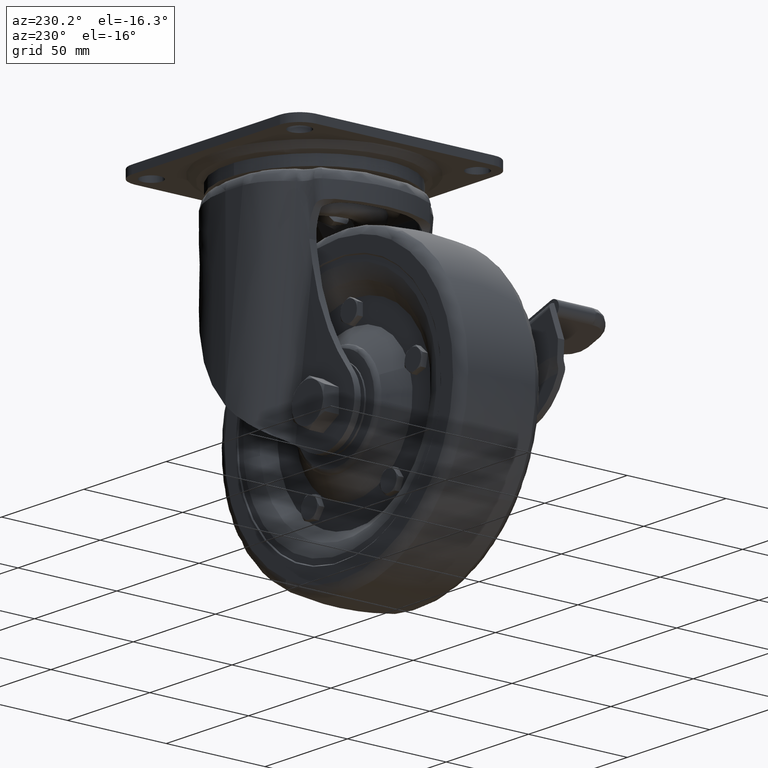
[diagram: clean part render]
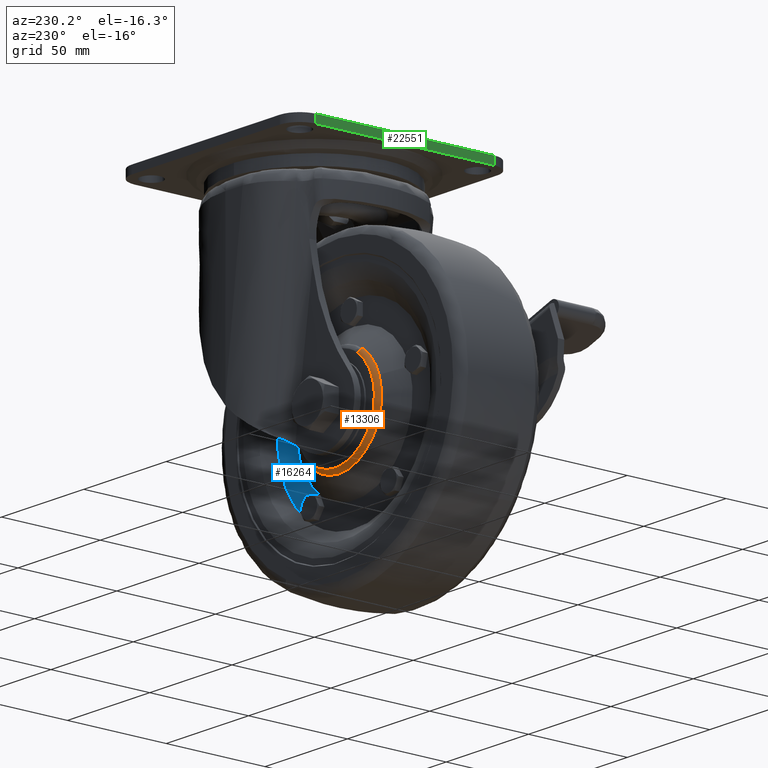
[diagram: same view with three faces highlighted in distinct colors, each labeled with its STEP entity id]
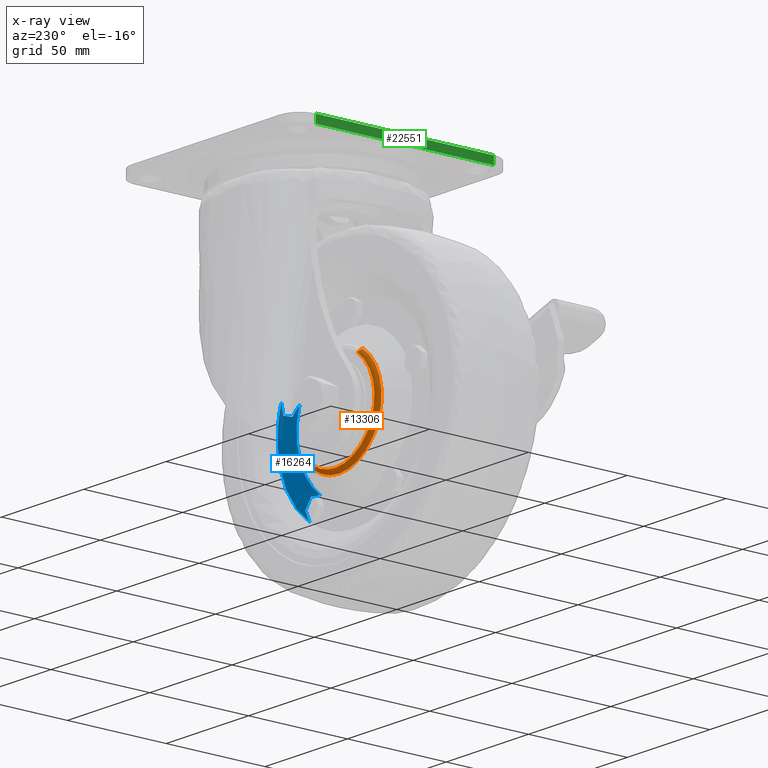
[diagram: x-ray of the same camera — body ghosted, the three highlighted faces saturated]
A machine part, auxiliary view with three faces highlighted in distinct colors.
The next image is the same camera in x-ray (body ghosted, the three faces saturated) — at least one of them is partly hidden behind the body in this view.
Their STEP definitions:

[orange] entity #13306 — the highlighted face is a freeform B-spline surface patch.
#12776=CARTESIAN_POINT('',(-53.861747544646320,23.0,-92.407857783142049));
#12777=VERTEX_POINT('',#12776);
#12778=CARTESIAN_POINT('',(-59.416410923004150,23.0,-126.106845855712900));
#12779=VERTEX_POINT('',#12778);
#12780=CARTESIAN_POINT('',(-53.861747544646320,22.999999999999993,-92.407857783142049));
#12781=CARTESIAN_POINT('',(-53.984850224825095,22.999999999999996,-92.494954839914882));
#12782=CARTESIAN_POINT('',(-54.106848720243448,22.999999999999989,-92.583591933061172));
#12783=CARTESIAN_POINT('',(-73.523256780459846,22.999999999999993,-106.690437791268470));
#12784=CARTESIAN_POINT('',(-59.416410923004150,23.0,-126.106845855712900));
#12792=(BOUNDED_CURVE()B_SPLINE_CURVE(2,(#12780,#12781,#12782,#12783,#12784),.UNSPECIFIED.,.F.,.U.)B_SPLINE_CURVE_WITH_KNOTS((3,2,3),(0.747784295919263,0.750000000000000,1.0),.UNSPECIFIED.)CURVE()GEOMETRIC_REPRESENTATION_ITEM()RATIONAL_B_SPLINE_CURVE((0.994854295638337,0.997404141199419,1.0,0.707106781186548,1.0))REPRESENTATION_ITEM(''));
#12793=EDGE_CURVE('',#12777,#12779,#12792,.T.);
#12810=CARTESIAN_POINT('',(-26.138258177399560,23.0,-131.592142216858010));
#12811=VERTEX_POINT('',#12810);
#12827=CARTESIAN_POINT('',(-59.416410923004150,23.0,-126.106845855712900));
#12828=CARTESIAN_POINT('',(-45.485732345554581,23.000000000000004,-145.280780455093380));
#12829=CARTESIAN_POINT('',(-26.138258177399560,23.000000000000004,-131.592142216857950));
#12837=(BOUNDED_CURVE()B_SPLINE_CURVE(2,(#12827,#12828,#12829),.UNSPECIFIED.,.F.,.U.)B_SPLINE_CURVE_WITH_KNOTS((3,3),(0.0,0.247784295919263),.UNSPECIFIED.)CURVE()GEOMETRIC_REPRESENTATION_ITEM()RATIONAL_B_SPLINE_CURVE((1.0,0.709702639987129,0.994854295638338))REPRESENTATION_ITEM(''));
#12838=EDGE_CURVE('',#12779,#12811,#12837,.T.);
#13163=CARTESIAN_POINT('',(-24.983112790695792,21.000000001174641,-133.224820729365290));
#13164=VERTEX_POINT('',#13163);
#13180=CARTESIAN_POINT('',(-26.138258177399564,23.000000000000007,-131.592142216857890));
#13181=CARTESIAN_POINT('',(-24.983112791475580,22.999999993888839,-133.224820728478110));
#13182=CARTESIAN_POINT('',(-24.983112790695792,21.000000001174644,-133.224820729365260));
#13190=(BOUNDED_CURVE()B_SPLINE_CURVE(2,(#13180,#13181,#13182),.UNSPECIFIED.,.F.,.U.)B_SPLINE_CURVE_WITH_KNOTS((3,3),(-1.725134640148327,-0.274865357320478),.UNSPECIFIED.)CURVE()GEOMETRIC_REPRESENTATION_ITEM()RATIONAL_B_SPLINE_CURVE((0.883342148535045,0.624617224794036,0.883342149438164))REPRESENTATION_ITEM(''));
#13191=EDGE_CURVE('',#12811,#13164,#13190,.T.);
#13195=CARTESIAN_POINT('',(-55.016892931350107,21.000000001174641,-90.775179270634695));
#13196=VERTEX_POINT('',#13195);
#13197=CARTESIAN_POINT('',(-53.861747544646320,23.0,-92.407857783142049));
#13198=CARTESIAN_POINT('',(-55.016892930570300,22.999999993888821,-90.775179271521878));
#13199=CARTESIAN_POINT('',(-55.016892931350114,21.000000001174637,-90.775179270634695));
#13207=(BOUNDED_CURVE()B_SPLINE_CURVE(2,(#13197,#13198,#13199),.UNSPECIFIED.,.F.,.U.)B_SPLINE_CURVE_WITH_KNOTS((3,3),(-1.725134640148324,-0.274865357320480),.UNSPECIFIED.)CURVE()GEOMETRIC_REPRESENTATION_ITEM()RATIONAL_B_SPLINE_CURVE((0.883342148535044,0.624617224794036,0.883342149438164))REPRESENTATION_ITEM(''));
#13208=EDGE_CURVE('',#12777,#13196,#13207,.T.);
#13226=CARTESIAN_POINT('',(-53.236863666654017,22.995158730984748,-92.136106010505870));
#13227=CARTESIAN_POINT('',(-53.507557182603804,22.995158730984755,-92.327625874142399));
#13228=CARTESIAN_POINT('',(-73.260032537809991,22.995158730984755,-106.302808741893320));
#13229=CARTESIAN_POINT('',(-59.478613328469812,22.995158730984752,-125.781419209340190));
#13230=CARTESIAN_POINT('',(-45.697194119129620,22.995158730984755,-145.260029676787040));
#13231=CARTESIAN_POINT('',(-25.944718764091050,22.995158730984755,-131.284846809154740));
#13232=CARTESIAN_POINT('',(-25.674025248304957,22.995158730984748,-131.093326945634060));
#13233=CARTESIAN_POINT('',(-54.509543759487805,23.155074287272768,-90.226258742501386));
#13234=CARTESIAN_POINT('',(-54.806263555691466,23.155074287272782,-90.436192603339492));
#13235=CARTESIAN_POINT('',(-76.457873648196312,23.155074287272765,-105.755042771870070));
#13236=CARTESIAN_POINT('',(-61.351416868674626,23.155074287272775,-127.106456779521750));
#13237=CARTESIAN_POINT('',(-46.244960089152876,23.155074287272765,-148.457870787173330));
#13238=CARTESIAN_POINT('',(-24.593349996831709,23.155074287272768,-133.139020618772750));
#13239=CARTESIAN_POINT('',(-24.296630200807535,23.155074287272768,-132.929086758061630));
#13240=CARTESIAN_POINT('',(-54.420830486800412,20.860925725519614,-90.359386307261587));
#13241=CARTESIAN_POINT('',(-54.715736098504607,20.860925725519625,-90.568036604410580));
#13242=CARTESIAN_POINT('',(-76.234965352518500,20.860925725519621,-105.793225275188190));
#13243=CARTESIAN_POINT('',(-61.220871469176643,20.860925725519621,-127.014093883341930));
#13244=CARTESIAN_POINT('',(-46.206777585834729,20.860925725519621,-148.234962491495590));
#13245=CARTESIAN_POINT('',(-24.687548332003420,20.860925725519618,-133.009773820847100));
#13246=CARTESIAN_POINT('',(-24.392642720477607,20.860925725519625,-132.801123523824290));
#13254=(BOUNDED_SURFACE()B_SPLINE_SURFACE(2,2,((#13226,#13233,#13240),(#13227,#13234,#13241),(#13228,#13235,#13242),(#13229,#13236,#13243),(#13230,#13237,#13244),(#13231,#13238,#13245),(#13232,#13239,#13246)),.UNSPECIFIED.,.F.,.F.,.U.)B_SPLINE_SURFACE_WITH_KNOTS((3,1,2,1,3),(3,3),(0.0,0.861403784493508,43.931592987657652,87.001782190821800,87.863185974785097),(0.0,3.645459986507694),.UNSPECIFIED.)GEOMETRIC_REPRESENTATION_ITEM()RATIONAL_B_SPLINE_SURFACE(((0.921146729410277,0.604479481455931,0.921146741242910),(0.915813262250637,0.600979527148884,0.915813274014759),(0.643806437242182,0.422481857576905,0.643806445512228),(0.910479795090997,0.597479572841838,0.910479806786608),(0.643806437242182,0.422481857576905,0.643806445512228),(0.915813262247354,0.600979527146730,0.915813274011476),(0.921146729403711,0.604479481451623,0.921146741236345)))REPRESENTATION_ITEM('')SURFACE());
#13255=CARTESIAN_POINT('',(-61.034444928169250,21.0,-127.282416343688990));
#13256=VERTEX_POINT('',#13255);
#13257=CARTESIAN_POINT('',(-61.034444928169250,21.0,-127.282416343688990));
#13258=CARTESIAN_POINT('',(-45.942876471017058,21.000000000587324,-148.054178823869730));
#13259=CARTESIAN_POINT('',(-24.983112790695781,21.000000001174637,-133.224820729365380));
#13267=(BOUNDED_CURVE()B_SPLINE_CURVE(2,(#13257,#13258,#13259),.UNSPECIFIED.,.F.,.U.)B_SPLINE_CURVE_WITH_KNOTS((3,3),(0.0,0.247784295921132),.UNSPECIFIED.)CURVE()GEOMETRIC_REPRESENTATION_ITEM()RATIONAL_B_SPLINE_CURVE((1.0,0.709702639984938,0.994854295642640))REPRESENTATION_ITEM(''));
#13268=EDGE_CURVE('',#13256,#13164,#13267,.T.);
#13269=ORIENTED_EDGE('',*,*,#13268,.F.);
#13270=CARTESIAN_POINT('',(-64.508681819609620,21.000000000516248,-103.321022060523210));
#13271=VERTEX_POINT('',#13270);
#13272=CARTESIAN_POINT('',(-64.508681819609620,21.000000000516241,-103.321022060523210));
#13273=CARTESIAN_POINT('',(-69.074912848661185,21.000000000196952,-116.215661397083170));
#13274=CARTESIAN_POINT('',(-61.034444928169250,21.0,-127.282416343688990));
#13282=(BOUNDED_CURVE()B_SPLINE_CURVE(2,(#13272,#13273,#13274),.UNSPECIFIED.,.F.,.U.)B_SPLINE_CURVE_WITH_KNOTS((3,3),(0.847270621473963,1.0),.UNSPECIFIED.)CURVE()GEOMETRIC_REPRESENTATION_ITEM()RATIONAL_B_SPLINE_CURVE((0.860760142432484,0.821066402864523,1.0))REPRESENTATION_ITEM(''));
#13283=EDGE_CURVE('',#13271,#13256,#13282,.T.);
#13284=ORIENTED_EDGE('',*,*,#13283,.F.);
#13285=CARTESIAN_POINT('',(-55.016892931350114,21.000000001174644,-90.775179270634695));
#13286=CARTESIAN_POINT('',(-55.150254168106898,21.000000001168861,-90.869534415377331));
#13287=CARTESIAN_POINT('',(-55.282419204708667,21.000000001163020,-90.965557932854836));
#13288=CARTESIAN_POINT('',(-61.813787402201896,21.000000000874387,-95.710874579296416));
#13289=CARTESIAN_POINT('',(-64.508681819609620,21.000000000516241,-103.321022060523210));
#13297=(BOUNDED_CURVE()B_SPLINE_CURVE(2,(#13285,#13286,#13287,#13288,#13289),.UNSPECIFIED.,.F.,.U.)B_SPLINE_CURVE_WITH_KNOTS((3,2,3),(0.747784295921132,0.750000000000000,0.847270621473963),.UNSPECIFIED.)CURVE()GEOMETRIC_REPRESENTATION_ITEM()RATIONAL_B_SPLINE_CURVE((0.994854295642641,0.997404141201609,1.0,0.886040378322025,0.860760142432484))REPRESENTATION_ITEM(''));
#13298=EDGE_CURVE('',#13196,#13271,#13297,.T.);
#13299=ORIENTED_EDGE('',*,*,#13298,.F.);
#13300=ORIENTED_EDGE('',*,*,#13208,.F.);
#13301=ORIENTED_EDGE('',*,*,#12793,.T.);
#13302=ORIENTED_EDGE('',*,*,#12838,.T.);
#13303=ORIENTED_EDGE('',*,*,#13191,.T.);
#13304=EDGE_LOOP('',(#13269,#13284,#13299,#13300,#13301,#13302,#13303));
#13305=FACE_OUTER_BOUND('',#13304,.T.);
#13306=ADVANCED_FACE('',(#13305),#13254,.T.);

[blue] entity #16264 — the highlighted face is a freeform B-spline surface patch.
#14296=CARTESIAN_POINT('',(-12.507227691417141,13.000000070073920,-149.840559075980000));
#14297=VERTEX_POINT('',#14296);
#14311=CARTESIAN_POINT('',(4.484242065217714,13.0,-97.546192753146471));
#14312=VERTEX_POINT('',#14311);
#14313=CARTESIAN_POINT('',(-12.507227691417141,13.000000070073920,-149.840559075980000));
#14314=CARTESIAN_POINT('',(14.985547752779295,13.000000000000004,-129.865888614076740));
#14315=CARTESIAN_POINT('',(4.484242065217671,13.0,-97.546192753146471));
#14323=(BOUNDED_CURVE()B_SPLINE_CURVE(2,(#14313,#14314,#14315),.UNSPECIFIED.,.F.,.U.)CURVE()GEOMETRIC_REPRESENTATION_ITEM()QUASI_UNIFORM_CURVE()RATIONAL_B_SPLINE_CURVE((1.0,0.809016993546362,1.0))REPRESENTATION_ITEM(''));
#14324=EDGE_CURVE('',#14297,#14312,#14323,.T.);
#14367=CARTESIAN_POINT('',(-6.794044945167606,12.999999999999931,-123.758845782925700));
#14368=VERTEX_POINT('',#14367);
#14374=CARTESIAN_POINT('',(-19.294386914779889,13.0,-140.498834424286000));
#14375=VERTEX_POINT('',#14374);
#14376=CARTESIAN_POINT('',(-19.294386914779889,13.0,-140.498834424286000));
#14377=CARTESIAN_POINT('',(-10.445263611964357,12.999999999999998,-134.069569779942950));
#14378=CARTESIAN_POINT('',(-6.794044945167649,12.999999999999996,-123.758845782925700));
#14386=(BOUNDED_CURVE()B_SPLINE_CURVE(2,(#14376,#14377,#14378),.UNSPECIFIED.,.F.,.U.)B_SPLINE_CURVE_WITH_KNOTS((3,3),(0.0,0.479855457769294),.UNSPECIFIED.)CURVE()GEOMETRIC_REPRESENTATION_ITEM()RATIONAL_B_SPLINE_CURVE((1.0,0.908355762409635,0.904663499980955))REPRESENTATION_ITEM(''));
#14387=EDGE_CURVE('',#14375,#14368,#14386,.T.);
#14433=CARTESIAN_POINT('',(-6.497613468599113,13.0,-101.114413187402800));
#14434=VERTEX_POINT('',#14433);
#14448=CARTESIAN_POINT('',(-6.794044945167649,12.999999999999998,-123.758845782925600));
#14449=CARTESIAN_POINT('',(-2.802454664837598,12.999999999999996,-112.486941948755360));
#14450=CARTESIAN_POINT('',(-6.497613468599141,13.0,-101.114413187402800));
#14458=(BOUNDED_CURVE()B_SPLINE_CURVE(2,(#14448,#14449,#14450),.UNSPECIFIED.,.F.,.U.)B_SPLINE_CURVE_WITH_KNOTS((3,3),(0.479855457769294,1.0),.UNSPECIFIED.)CURVE()GEOMETRIC_REPRESENTATION_ITEM()RATIONAL_B_SPLINE_CURVE((0.904663499980955,0.900661231965313,1.0))REPRESENTATION_ITEM(''));
#14459=EDGE_CURVE('',#14368,#14434,#14458,.T.);
#16110=CARTESIAN_POINT('',(-13.552512300293060,13.0,-139.895340335270590));
#16111=VERTEX_POINT('',#16110);
#16120=CARTESIAN_POINT('',(-19.294386914779889,13.0,-140.498834424286000));
#16121=CARTESIAN_POINT('',(-13.552512300293060,13.0,-139.895340335270590));
#16122=QUASI_UNIFORM_CURVE('',1,(#16120,#16121),.UNSPECIFIED.,.F.,.U.);
#16123=EDGE_CURVE('',#14375,#16111,#16122,.T.);
#16136=CARTESIAN_POINT('',(-10.158932641132409,13.0,-144.566201607629010));
#16137=VERTEX_POINT('',#16136);
#16143=CARTESIAN_POINT('',(-10.158932641132409,13.0,-144.566201607629010));
#16144=CARTESIAN_POINT('',(-12.507227691417141,13.000000070073920,-149.840559075980000));
#16145=QUASI_UNIFORM_CURVE('',1,(#16143,#16144),.UNSPECIFIED.,.F.,.U.);
#16146=EDGE_CURVE('',#16137,#14297,#16145,.T.);
#16160=CARTESIAN_POINT('',(-13.552512300293060,13.0,-139.895340335270590));
#16161=CARTESIAN_POINT('',(-10.158932641132409,13.0,-144.566201607629010));
#16162=QUASI_UNIFORM_CURVE('',1,(#16160,#16161),.UNSPECIFIED.,.F.,.U.);
#16163=EDGE_CURVE('',#16111,#16137,#16162,.T.);
#16176=CARTESIAN_POINT('',(-2.207063929690122,13.0,-104.977641109459600));
#16177=VERTEX_POINT('',#16176);
#16183=CARTESIAN_POINT('',(-2.207063929690122,13.0,-104.977641109459600));
#16184=CARTESIAN_POINT('',(-6.497613468599113,13.0,-101.114413187402800));
#16185=QUASI_UNIFORM_CURVE('',1,(#16183,#16184),.UNSPECIFIED.,.F.,.U.);
#16186=EDGE_CURVE('',#16177,#14434,#16185,.T.);
#16213=CARTESIAN_POINT('',(3.283863494328138,13.0,-103.193531381591800));
#16214=VERTEX_POINT('',#16213);
#16223=CARTESIAN_POINT('',(4.484242065217714,13.0,-97.546192753146471));
#16224=CARTESIAN_POINT('',(3.283863494328138,13.0,-103.193531381591800));
#16225=QUASI_UNIFORM_CURVE('',1,(#16223,#16224),.UNSPECIFIED.,.F.,.U.);
#16226=EDGE_CURVE('',#14312,#16214,#16225,.T.);
#16240=CARTESIAN_POINT('',(3.283863494328138,13.0,-103.193531381591800));
#16241=CARTESIAN_POINT('',(-2.207063929690122,13.0,-104.977641109459600));
#16242=QUASI_UNIFORM_CURVE('',1,(#16240,#16241),.UNSPECIFIED.,.F.,.U.);
#16243=EDGE_CURVE('',#16214,#16177,#16242,.T.);
#16248=CARTESIAN_POINT('',(3.130855400842336,13.0,-91.903144041006442));
#16249=CARTESIAN_POINT('',(-36.452907864147690,13.0,-120.662430773429310));
#16250=CARTESIAN_POINT('',(26.332573822025932,13.0,-123.837570574946990));
#16251=CARTESIAN_POINT('',(-13.251189442964090,13.0,-152.596857307369900));
#16252=B_SPLINE_SURFACE_WITH_KNOTS('',1,1,((#16248,#16250),(#16249,#16251)),.UNSPECIFIED.,.F.,.F.,.U.,(2,2),(2,2),(0.0,48.928221704402318),(0.0,39.473121617962583),.UNSPECIFIED.);
#16253=ORIENTED_EDGE('',*,*,#16163,.F.);
#16254=ORIENTED_EDGE('',*,*,#16123,.F.);
#16255=ORIENTED_EDGE('',*,*,#14387,.T.);
#16256=ORIENTED_EDGE('',*,*,#14459,.T.);
#16257=ORIENTED_EDGE('',*,*,#16186,.F.);
#16258=ORIENTED_EDGE('',*,*,#16243,.F.);
#16259=ORIENTED_EDGE('',*,*,#16226,.F.);
#16260=ORIENTED_EDGE('',*,*,#14324,.F.);
#16261=ORIENTED_EDGE('',*,*,#16146,.F.);
#16262=EDGE_LOOP('',(#16253,#16254,#16255,#16256,#16257,#16258,#16259,#16260,#16261));
#16263=FACE_OUTER_BOUND('',#16262,.T.);
#16264=ADVANCED_FACE('',(#16263),#16252,.F.);

[green] entity #22551 — the highlighted face is a freeform B-spline surface patch.
#22327=CARTESIAN_POINT('',(-55.0,-45.0,-4.0));
#22328=VERTEX_POINT('',#22327);
#22342=CARTESIAN_POINT('',(-55.0,45.0,-4.0));
#22343=VERTEX_POINT('',#22342);
#22344=CARTESIAN_POINT('',(-55.0,45.0,-4.0));
#22345=CARTESIAN_POINT('',(-55.0,-45.0,-4.0));
#22346=QUASI_UNIFORM_CURVE('',1,(#22344,#22345),.UNSPECIFIED.,.F.,.U.);
#22347=EDGE_CURVE('',#22343,#22328,#22346,.T.);
#22505=CARTESIAN_POINT('',(-55.0,-45.0,0.0));
#22506=VERTEX_POINT('',#22505);
#22520=CARTESIAN_POINT('',(-55.0,-45.0,-4.0));
#22521=CARTESIAN_POINT('',(-55.0,-45.0,0.0));
#22522=QUASI_UNIFORM_CURVE('',1,(#22520,#22521),.UNSPECIFIED.,.F.,.U.);
#22523=EDGE_CURVE('',#22328,#22506,#22522,.T.);
#22530=CARTESIAN_POINT('',(-55.0,49.495499825562533,-4.199799992247224));
#22531=CARTESIAN_POINT('',(-55.0,-49.495502239550653,-4.199799992247224));
#22532=CARTESIAN_POINT('',(-55.0,49.495499825562533,0.199800099535584));
#22533=CARTESIAN_POINT('',(-55.0,-49.495502239550653,0.199800099535584));
#22534=B_SPLINE_SURFACE_WITH_KNOTS('',1,1,((#22530,#22532),(#22531,#22533)),.UNSPECIFIED.,.F.,.F.,.U.,(2,2),(2,2),(0.0,98.991002065113179),(0.0,4.399600091782808),.UNSPECIFIED.);
#22535=CARTESIAN_POINT('',(-55.0,45.0,0.0));
#22536=VERTEX_POINT('',#22535);
#22537=CARTESIAN_POINT('',(-55.0,45.0,0.0));
#22538=CARTESIAN_POINT('',(-55.0,-45.0,0.0));
#22539=QUASI_UNIFORM_CURVE('',1,(#22537,#22538),.UNSPECIFIED.,.F.,.U.);
#22540=EDGE_CURVE('',#22536,#22506,#22539,.T.);
#22541=ORIENTED_EDGE('',*,*,#22540,.F.);
#22542=CARTESIAN_POINT('',(-55.0,45.0,-4.0));
#22543=CARTESIAN_POINT('',(-55.0,45.0,0.0));
#22544=QUASI_UNIFORM_CURVE('',1,(#22542,#22543),.UNSPECIFIED.,.F.,.U.);
#22545=EDGE_CURVE('',#22343,#22536,#22544,.T.);
#22546=ORIENTED_EDGE('',*,*,#22545,.F.);
#22547=ORIENTED_EDGE('',*,*,#22347,.T.);
#22548=ORIENTED_EDGE('',*,*,#22523,.T.);
#22549=EDGE_LOOP('',(#22541,#22546,#22547,#22548));
#22550=FACE_OUTER_BOUND('',#22549,.T.);
#22551=ADVANCED_FACE('',(#22550),#22534,.T.);